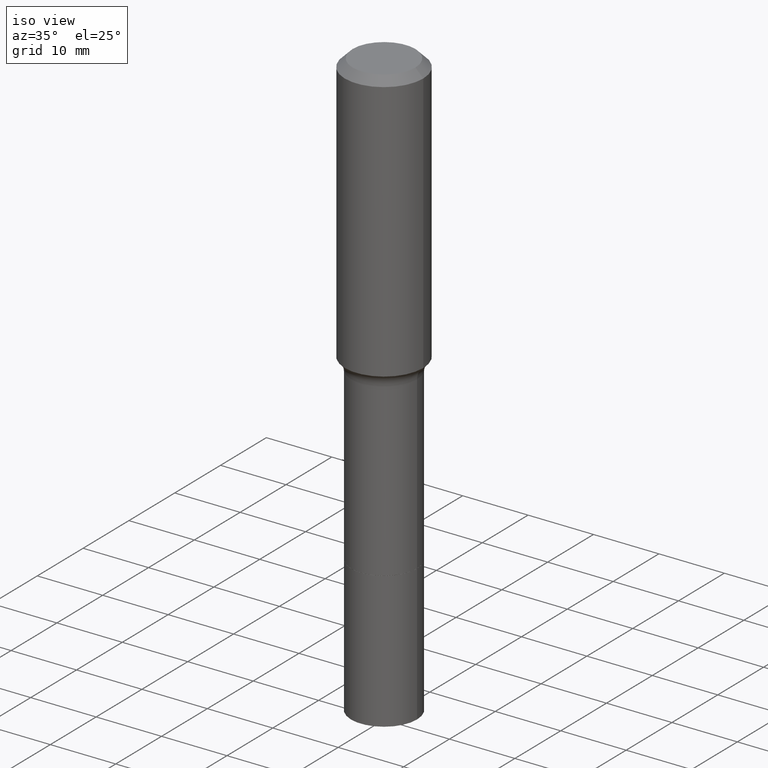
[diagram: clean part render]
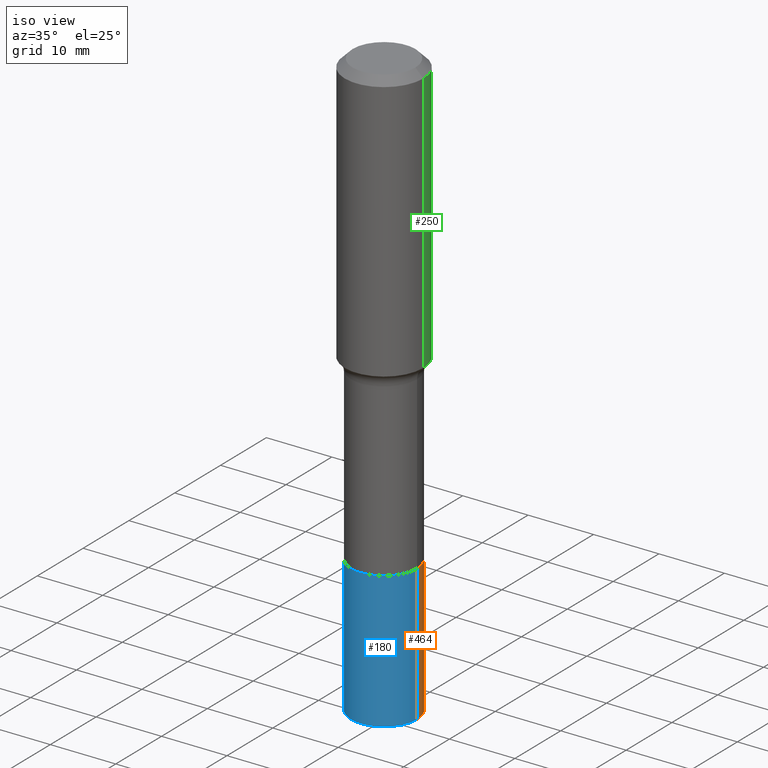
[diagram: same view with three faces highlighted in distinct colors, each labeled with its STEP entity id]
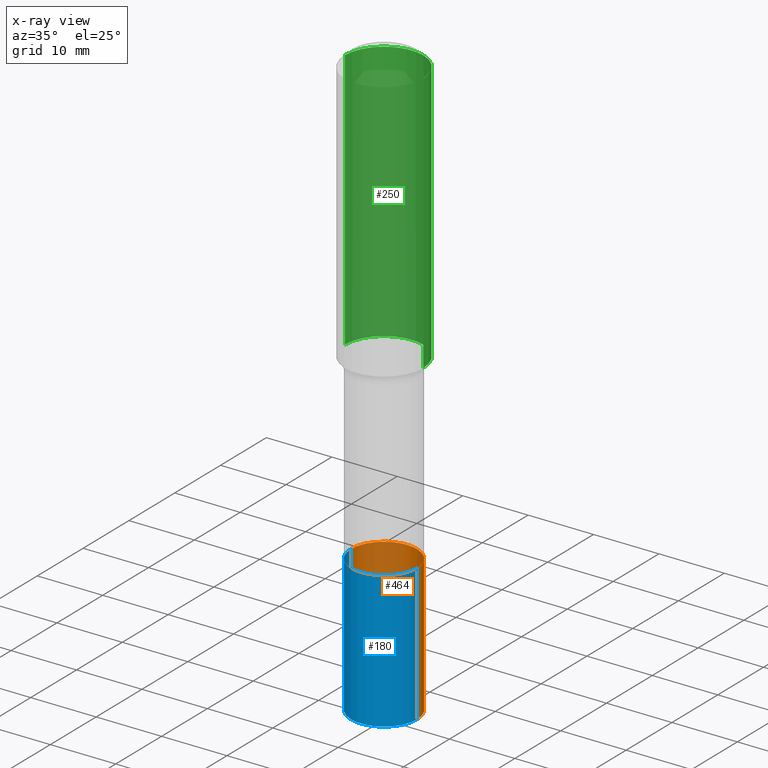
[diagram: x-ray of the same camera — body ghosted, the three highlighted faces saturated]
A machine part, iso view with three faces highlighted in distinct colors.
The next image is the same camera in x-ray (body ghosted, the three faces saturated) — at least one of them is partly hidden behind the body in this view.
Their STEP definitions:

[orange] entity #464 — the highlighted cylindrical surface (partial cylindrical patch) has radius 5.0419 mm, axis along (-0, 0, 1).
#3 = EDGE_CURVE ( 'NONE', #349, #101, #373, .T. ) ;
#37 = CARTESIAN_POINT ( 'NONE',  ( -0.1985000000000000098, -9.527685407844006907E-15, -3.543299999999999894 ) ) ;
#45 = VECTOR ( 'NONE', #417, 39.37007874015748143 ) ;
#49 = EDGE_LOOP ( 'NONE', ( #185, #114, #503, #423 ) ) ;
#59 = CARTESIAN_POINT ( 'NONE',  ( 8.665029620955794069E-29, -1.237136582792291707E-14, -3.543299999999999894 ) ) ;
#65 = EDGE_CURVE ( 'NONE', #349, #228, #198, .T. ) ;
#90 = DIRECTION ( 'NONE',  ( 1.000000000000000000, -6.982962677686261189E-15, 0.000000000000000000 ) ) ;
#96 = CARTESIAN_POINT ( 'NONE',  ( 0.1985000000000000098, -1.089097774025341894E-14, -2.722300000000000164 ) ) ;
#101 = VERTEX_POINT ( 'NONE', #218 ) ;
#107 = CARTESIAN_POINT ( 'NONE',  ( 6.657299731077797444E-29, -9.504859648732694617E-15, -2.722300000000000164 ) ) ;
#114 = ORIENTED_EDGE ( 'NONE', *, *, #515, .T. ) ;
#118 = CIRCLE ( 'NONE', #402, 0.1985000000000000098 ) ;
#146 = DIRECTION ( 'NONE',  ( -2.445468806185136877E-29, 3.491481338843145188E-15, 1.000000000000000000 ) ) ;
#148 = CYLINDRICAL_SURFACE ( 'NONE', #468, 0.1985000000000000098 ) ;
#149 = VERTEX_POINT ( 'NONE', #360 ) ;
#166 = AXIS2_PLACEMENT_3D ( 'NONE', #59, #301, #90 ) ;
#185 = ORIENTED_EDGE ( 'NONE', *, *, #65, .T. ) ;
#198 = CIRCLE ( 'NONE', #166, 0.1985000000000000098 ) ;
#218 = CARTESIAN_POINT ( 'NONE',  ( 0.1985000000000000098, -1.089097774025341894E-14, -2.722300000000000164 ) ) ;
#227 = DIRECTION ( 'NONE',  ( -2.445468806185136597E-29, 3.491481338843145583E-15, 1.000000000000000000 ) ) ;
#228 = VERTEX_POINT ( 'NONE', #37 ) ;
#249 = LINE ( 'NONE', #358, #45 ) ;
#301 = DIRECTION ( 'NONE',  ( -2.445468806185136597E-29, 3.491481338843145583E-15, 1.000000000000000000 ) ) ;
#315 = EDGE_CURVE ( 'NONE', #101, #149, #118, .T. ) ;
#330 = DIRECTION ( 'NONE',  ( 1.000000000000000000, -6.982962677686271444E-15, 0.000000000000000000 ) ) ;
#336 = VECTOR ( 'NONE', #146, 39.37007874015748143 ) ;
#343 = DIRECTION ( 'NONE',  ( -2.445468806185136597E-29, 3.491481338843145583E-15, 1.000000000000000000 ) ) ;
#349 = VERTEX_POINT ( 'NONE', #412 ) ;
#358 = CARTESIAN_POINT ( 'NONE',  ( -0.1985000000000000098, -8.094432318248894890E-15, -2.722300000000000164 ) ) ;
#360 = CARTESIAN_POINT ( 'NONE',  ( -0.1985000000000000098, -9.527685407844006907E-15, -2.722300000000000164 ) ) ;
#373 = LINE ( 'NONE', #96, #336 ) ;
#382 = CARTESIAN_POINT ( 'NONE',  ( 6.657299731077797444E-29, -9.504859648732694617E-15, -2.722300000000000164 ) ) ;
#402 = AXIS2_PLACEMENT_3D ( 'NONE', #107, #343, #496 ) ;
#412 = CARTESIAN_POINT ( 'NONE',  ( 0.1985000000000000098, -1.375748391944363982E-14, -3.543299999999999894 ) ) ;
#417 = DIRECTION ( 'NONE',  ( -2.445468806185136877E-29, 3.491481338843145188E-15, 1.000000000000000000 ) ) ;
#423 = ORIENTED_EDGE ( 'NONE', *, *, #3, .F. ) ;
#464 = ADVANCED_FACE ( 'NONE', ( #486 ), #148, .T. ) ;
#468 = AXIS2_PLACEMENT_3D ( 'NONE', #382, #227, #330 ) ;
#486 = FACE_OUTER_BOUND ( 'NONE', #49, .T. ) ;
#496 = DIRECTION ( 'NONE',  ( 1.000000000000000000, -6.982962677686271444E-15, 0.000000000000000000 ) ) ;
#503 = ORIENTED_EDGE ( 'NONE', *, *, #315, .F. ) ;
#515 = EDGE_CURVE ( 'NONE', #228, #149, #249, .T. ) ;

[blue] entity #180 — the highlighted cylindrical surface (partial cylindrical patch) has radius 5.0419 mm, axis along (-0, 0, 1).
#3 = EDGE_CURVE ( 'NONE', #349, #101, #373, .T. ) ;
#10 = ORIENTED_EDGE ( 'NONE', *, *, #515, .F. ) ;
#35 = AXIS2_PLACEMENT_3D ( 'NONE', #487, #438, #86 ) ;
#37 = CARTESIAN_POINT ( 'NONE',  ( -0.1985000000000000098, -9.527685407844006907E-15, -3.543299999999999894 ) ) ;
#45 = VECTOR ( 'NONE', #417, 39.37007874015748143 ) ;
#56 = DIRECTION ( 'NONE',  ( 1.000000000000000000, -6.982962677686261189E-15, 0.000000000000000000 ) ) ;
#86 = DIRECTION ( 'NONE',  ( 1.000000000000000000, -6.982962677686271444E-15, 0.000000000000000000 ) ) ;
#96 = CARTESIAN_POINT ( 'NONE',  ( 0.1985000000000000098, -1.089097774025341894E-14, -2.722300000000000164 ) ) ;
#101 = VERTEX_POINT ( 'NONE', #218 ) ;
#102 = CARTESIAN_POINT ( 'NONE',  ( 8.665029620955794069E-29, -1.237136582792291707E-14, -3.543299999999999894 ) ) ;
#116 = ORIENTED_EDGE ( 'NONE', *, *, #422, .T. ) ;
#133 = ORIENTED_EDGE ( 'NONE', *, *, #285, .F. ) ;
#146 = DIRECTION ( 'NONE',  ( -2.445468806185136877E-29, 3.491481338843145188E-15, 1.000000000000000000 ) ) ;
#149 = VERTEX_POINT ( 'NONE', #360 ) ;
#152 = AXIS2_PLACEMENT_3D ( 'NONE', #102, #454, #56 ) ;
#180 = ADVANCED_FACE ( 'NONE', ( #181 ), #331, .T. ) ;
#181 = FACE_OUTER_BOUND ( 'NONE', #302, .T. ) ;
#218 = CARTESIAN_POINT ( 'NONE',  ( 0.1985000000000000098, -1.089097774025341894E-14, -2.722300000000000164 ) ) ;
#221 = CIRCLE ( 'NONE', #386, 0.1985000000000000098 ) ;
#228 = VERTEX_POINT ( 'NONE', #37 ) ;
#249 = LINE ( 'NONE', #358, #45 ) ;
#282 = CIRCLE ( 'NONE', #152, 0.1985000000000000098 ) ;
#285 = EDGE_CURVE ( 'NONE', #149, #101, #221, .T. ) ;
#289 = CARTESIAN_POINT ( 'NONE',  ( 6.657299731077797444E-29, -9.504859648732694617E-15, -2.722300000000000164 ) ) ;
#296 = DIRECTION ( 'NONE',  ( -2.445468806185136597E-29, 3.491481338843145583E-15, 1.000000000000000000 ) ) ;
#298 = ORIENTED_EDGE ( 'NONE', *, *, #3, .T. ) ;
#302 = EDGE_LOOP ( 'NONE', ( #10, #116, #298, #133 ) ) ;
#331 = CYLINDRICAL_SURFACE ( 'NONE', #35, 0.1985000000000000098 ) ;
#336 = VECTOR ( 'NONE', #146, 39.37007874015748143 ) ;
#349 = VERTEX_POINT ( 'NONE', #412 ) ;
#358 = CARTESIAN_POINT ( 'NONE',  ( -0.1985000000000000098, -8.094432318248894890E-15, -2.722300000000000164 ) ) ;
#360 = CARTESIAN_POINT ( 'NONE',  ( -0.1985000000000000098, -9.527685407844006907E-15, -2.722300000000000164 ) ) ;
#373 = LINE ( 'NONE', #96, #336 ) ;
#378 = DIRECTION ( 'NONE',  ( 1.000000000000000000, -6.982962677686271444E-15, 0.000000000000000000 ) ) ;
#386 = AXIS2_PLACEMENT_3D ( 'NONE', #289, #296, #378 ) ;
#412 = CARTESIAN_POINT ( 'NONE',  ( 0.1985000000000000098, -1.375748391944363982E-14, -3.543299999999999894 ) ) ;
#417 = DIRECTION ( 'NONE',  ( -2.445468806185136877E-29, 3.491481338843145188E-15, 1.000000000000000000 ) ) ;
#422 = EDGE_CURVE ( 'NONE', #228, #349, #282, .T. ) ;
#438 = DIRECTION ( 'NONE',  ( -2.445468806185136597E-29, 3.491481338843145583E-15, 1.000000000000000000 ) ) ;
#454 = DIRECTION ( 'NONE',  ( -2.445468806185136597E-29, 3.491481338843145583E-15, 1.000000000000000000 ) ) ;
#487 = CARTESIAN_POINT ( 'NONE',  ( 6.657299731077797444E-29, -9.504859648732694617E-15, -2.722300000000000164 ) ) ;
#515 = EDGE_CURVE ( 'NONE', #228, #149, #249, .T. ) ;

[green] entity #250 — the highlighted cylindrical surface (partial cylindrical patch) has radius 5.9995 mm, axis along (-0, 0, 1).
#16 = DIRECTION ( 'NONE',  ( -2.445468806185136877E-29, 3.491481338843145188E-15, 1.000000000000000000 ) ) ;
#33 = CARTESIAN_POINT ( 'NONE',  ( 0.2362000000000002153, -7.310319993254067046E-15, -1.621358861582873567 ) ) ;
#42 = DIRECTION ( 'NONE',  ( 1.000000000000000000, -6.982962677686266711E-15, 4.876176775795935793E-29 ) ) ;
#48 = CARTESIAN_POINT ( 'NONE',  ( 1.155239464041865857E-30, -1.649375784469512352E-16, -0.04724000000000030258 ) ) ;
#74 = EDGE_CURVE ( 'NONE', #311, #497, #251, .T. ) ;
#85 = DIRECTION ( 'NONE',  ( -2.445468806185136597E-29, 3.491481338843145583E-15, 1.000000000000000000 ) ) ;
#105 = LINE ( 'NONE', #230, #187 ) ;
#123 = CARTESIAN_POINT ( 'NONE',  ( 0.2361999999999999933, -1.814313362916447440E-15, -0.04724000000000030258 ) ) ;
#129 = DIRECTION ( 'NONE',  ( -2.445468806185136597E-29, 3.491481338843145583E-15, 1.000000000000000000 ) ) ;
#134 = EDGE_CURVE ( 'NONE', #226, #497, #238, .T. ) ;
#136 = DIRECTION ( 'NONE',  ( 1.000000000000000000, -6.982962677686266711E-15, 0.000000000000000000 ) ) ;
#187 = VECTOR ( 'NONE', #16, 39.37007874015748143 ) ;
#210 = AXIS2_PLACEMENT_3D ( 'NONE', #286, #437, #42 ) ;
#226 = VERTEX_POINT ( 'NONE', #123 ) ;
#230 = CARTESIAN_POINT ( 'NONE',  ( 0.2362000000000001043, -1.649375784469496920E-15, 1.151752954443000508E-29 ) ) ;
#231 = VERTEX_POINT ( 'NONE', #33 ) ;
#238 = CIRCLE ( 'NONE', #452, 0.2361999999999999933 ) ;
#246 = DIRECTION ( 'NONE',  ( 1.000000000000000000, -6.982962677686266711E-15, 0.000000000000000000 ) ) ;
#250 = ADVANCED_FACE ( 'NONE', ( #314 ), #319, .T. ) ;
#251 = LINE ( 'NONE', #409, #480 ) ;
#272 = ORIENTED_EDGE ( 'NONE', *, *, #74, .T. ) ;
#273 = EDGE_CURVE ( 'NONE', #231, #311, #316, .T. ) ;
#283 = DIRECTION ( 'NONE',  ( -2.445468806185136877E-29, 3.491481338843145188E-15, 1.000000000000000000 ) ) ;
#286 = CARTESIAN_POINT ( 'NONE',  ( 0.000000000000000000, 0.000000000000000000, 0.000000000000000000 ) ) ;
#311 = VERTEX_POINT ( 'NONE', #457 ) ;
#314 = FACE_OUTER_BOUND ( 'NONE', #348, .T. ) ;
#316 = CIRCLE ( 'NONE', #490, 0.2362000000000002153 ) ;
#319 = CYLINDRICAL_SURFACE ( 'NONE', #210, 0.2362000000000001043 ) ;
#335 = EDGE_CURVE ( 'NONE', #231, #226, #105, .T. ) ;
#348 = EDGE_LOOP ( 'NONE', ( #413, #272, #376, #493 ) ) ;
#376 = ORIENTED_EDGE ( 'NONE', *, *, #134, .F. ) ;
#394 = CARTESIAN_POINT ( 'NONE',  ( -0.2361999999999999933, -1.234638951750402943E-15, -0.04724000000000030258 ) ) ;
#409 = CARTESIAN_POINT ( 'NONE',  ( -0.2362000000000001043, 1.678301941865357380E-15, -1.161852468318209317E-29 ) ) ;
#413 = ORIENTED_EDGE ( 'NONE', *, *, #273, .T. ) ;
#437 = DIRECTION ( 'NONE',  ( -2.445468806185136597E-29, 3.491481338843145583E-15, 1.000000000000000000 ) ) ;
#452 = AXIS2_PLACEMENT_3D ( 'NONE', #48, #129, #136 ) ;
#457 = CARTESIAN_POINT ( 'NONE',  ( -0.2362000000000002153, -3.982642266919210971E-15, -1.621358861582873567 ) ) ;
#475 = CARTESIAN_POINT ( 'NONE',  ( 3.964982519632762252E-29, -5.660944208784569732E-15, -1.621358861582873567 ) ) ;
#480 = VECTOR ( 'NONE', #283, 39.37007874015748143 ) ;
#490 = AXIS2_PLACEMENT_3D ( 'NONE', #475, #85, #246 ) ;
#493 = ORIENTED_EDGE ( 'NONE', *, *, #335, .F. ) ;
#497 = VERTEX_POINT ( 'NONE', #394 ) ;